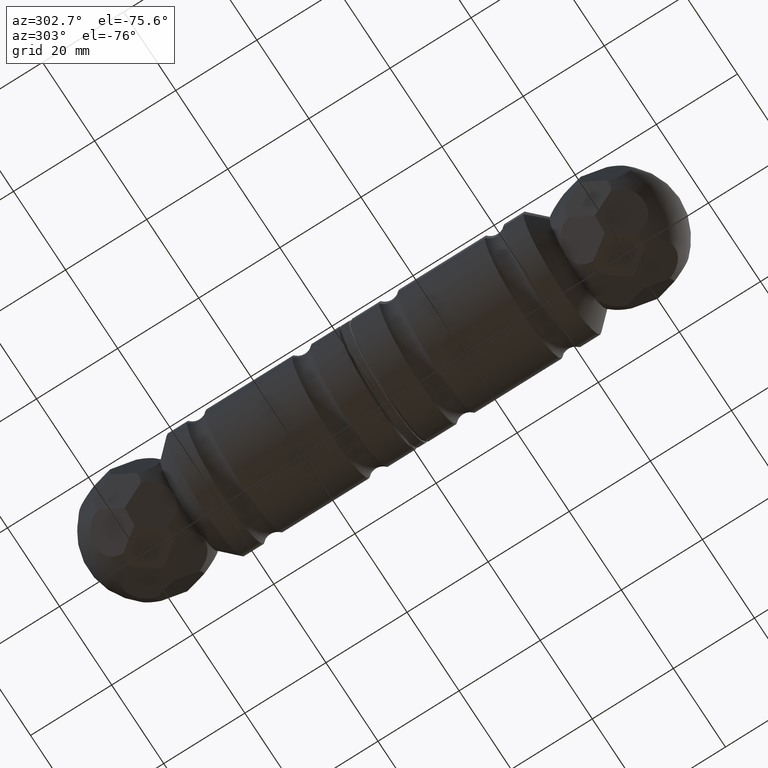
[diagram: clean part render]
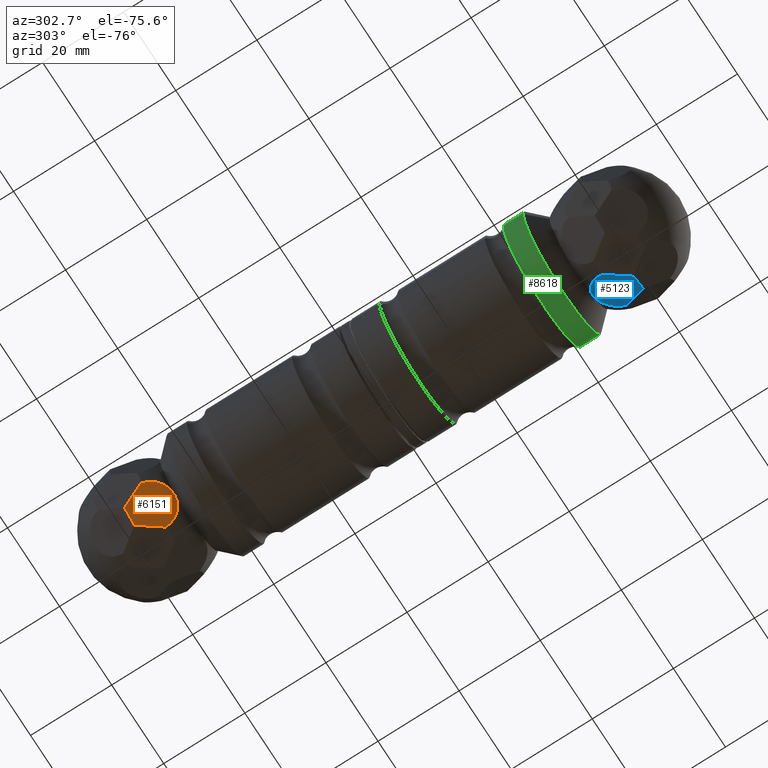
[diagram: same view with three faces highlighted in distinct colors, each labeled with its STEP entity id]
A machine part, auxiliary view with three faces highlighted in distinct colors.
Their STEP definitions:

[orange] entity #6151 — the highlighted planar face has unit normal (-0.4698, -0.342, -0.8138).
#338 = EDGE_CURVE ( 'NONE', #1798, #7979, #10014, .T. ) ;
#771 = ORIENTED_EDGE ( 'NONE', *, *, #8248, .F. ) ;
#797 = VERTEX_POINT ( 'NONE', #985 ) ;
#985 = CARTESIAN_POINT ( 'NONE',  ( -1.713864669725548184, 51.75975497768801858, -13.95000000000003482 ) ) ;
#1187 = CARTESIAN_POINT ( 'NONE',  ( -10.27424977129235550, 54.36950760911572900, -10.10447738646861815 ) ) ;
#1239 = ORIENTED_EDGE ( 'NONE', *, *, #2906, .F. ) ;
#1299 = DIRECTION ( 'NONE',  ( -0.1710100716628319417, 0.9396926207859082059, -0.2961981327260259644 ) ) ;
#1497 = DIRECTION ( 'NONE',  ( -0.4698463103929466089, -0.3420201433256693790, -0.8137976813493779105 ) ) ;
#1510 = LINE ( 'NONE', #5236, #8068 ) ;
#1770 = EDGE_CURVE ( 'NONE', #4732, #797, #1510, .T. ) ;
#1798 = VERTEX_POINT ( 'NONE', #13544 ) ;
#2233 = CARTESIAN_POINT ( 'NONE',  ( -7.422639963019364018, 56.99999999999999289, -12.85638954224098818 ) ) ;
#2347 = DIRECTION ( 'NONE',  ( 0.2942623679600631648, 0.8084792113654895029, -0.5096773720623396509 ) ) ;
#2680 = CIRCLE ( 'NONE', #10488, 5.513392784846723238 ) ;
#2694 = CARTESIAN_POINT ( 'NONE',  ( -6.554356029981602383, 52.22881900060691152, -11.35247765482381865 ) ) ;
#2906 = EDGE_CURVE ( 'NONE', #1798, #797, #9971, .T. ) ;
#2921 = LINE ( 'NONE', #2233, #10247 ) ;
#3320 = DIRECTION ( 'NONE',  ( -0.8660254037844432595, -2.953686663242670623E-17, 0.4999999999999919509 ) ) ;
#3611 = CIRCLE ( 'NONE', #8136, 5.513392784846724126 ) ;
#3756 = DIRECTION ( 'NONE',  ( -0.8660254037843626573, -4.417519040118864010E-13, 0.5000000000001315614 ) ) ;
#4459 = DIRECTION ( 'NONE',  ( -0.8660254037844433705, 1.258552433082297347E-15, 0.4999999999999917843 ) ) ;
#4511 = DIRECTION ( 'NONE',  ( 0.4698463103929464979, 0.3420201433256693790, 0.8137976813493777994 ) ) ;
#4567 = VERTEX_POINT ( 'NONE', #4709 ) ;
#4709 = CARTESIAN_POINT ( 'NONE',  ( -5.561659592849339973, 56.99999999999999289, -13.93082705991524328 ) ) ;
#4732 = VERTEX_POINT ( 'NONE', #13441 ) ;
#4746 = DIRECTION ( 'NONE',  ( 0.4698463103929464979, 0.3420201433256693790, 0.8137976813493777994 ) ) ;
#4841 = DIRECTION ( 'NONE',  ( -0.8660254037843092556, -7.362531733531441194E-13, 0.5000000000002241540 ) ) ;
#4917 = DIRECTION ( 'NONE',  ( 0.4698463103929464979, 0.3420201433256693790, 0.8137976813493777994 ) ) ;
#5236 = CARTESIAN_POINT ( 'NONE',  ( -3.613609223000679549, 54.36950760911571479, -13.95000000000006857 ) ) ;
#5318 = EDGE_CURVE ( 'NONE', #4732, #4567, #3611, .T. ) ;
#5451 = CARTESIAN_POINT ( 'NONE',  ( -6.554356029981602383, 52.22881900060691152, -11.35247765482381865 ) ) ;
#5661 = CARTESIAN_POINT ( 'NONE',  ( -6.554356029981603271, 52.22881900060693994, -11.35247765482382043 ) ) ;
#5872 = CARTESIAN_POINT ( 'NONE',  ( -6.554356029981602383, 52.22881900060691152, -11.35247765482381865 ) ) ;
#5893 = ORIENTED_EDGE ( 'NONE', *, *, #5318, .F. ) ;
#5929 = ORIENTED_EDGE ( 'NONE', *, *, #338, .T. ) ;
#6151 = ADVANCED_FACE ( 'NONE', ( #8102 ), #11851, .T. ) ;
#7310 = CARTESIAN_POINT ( 'NONE',  ( -9.283620333189391616, 56.99999999999999289, -11.78195202456674195 ) ) ;
#7335 = CARTESIAN_POINT ( 'NONE',  ( -9.324377494654711995, 56.97926024054350336, -11.74970443030608003 ) ) ;
#7342 = DIRECTION ( 'NONE',  ( 0.5885247359201012385, -0.8084792113654964973, 1.038813655595948112E-14 ) ) ;
#7957 = ORIENTED_EDGE ( 'NONE', *, *, #11993, .F. ) ;
#7979 = VERTEX_POINT ( 'NONE', #7335 ) ;
#8068 = VECTOR ( 'NONE', #7342, 1000.000000000000114 ) ;
#8102 = FACE_OUTER_BOUND ( 'NONE', #11109, .T. ) ;
#8136 = AXIS2_PLACEMENT_3D ( 'NONE', #5872, #4917, #3756 ) ;
#8248 = EDGE_CURVE ( 'NONE', #9316, #7979, #2680, .T. ) ;
#9316 = VERTEX_POINT ( 'NONE', #7310 ) ;
#9971 = CIRCLE ( 'NONE', #11312, 5.513392784846725014 ) ;
#10014 = LINE ( 'NONE', #1187, #12454 ) ;
#10247 = VECTOR ( 'NONE', #3320, 1000.000000000000114 ) ;
#10488 = AXIS2_PLACEMENT_3D ( 'NONE', #2694, #4746, #4841 ) ;
#11109 = EDGE_LOOP ( 'NONE', ( #7957, #5893, #13245, #1239, #5929, #771 ) ) ;
#11312 = AXIS2_PLACEMENT_3D ( 'NONE', #5451, #4511, #4459 ) ;
#11851 = PLANE ( 'NONE',  #12934 ) ;
#11993 = EDGE_CURVE ( 'NONE', #4567, #9316, #2921, .T. ) ;
#12454 = VECTOR ( 'NONE', #2347, 1000.000000000000000 ) ;
#12934 = AXIS2_PLACEMENT_3D ( 'NONE', #5661, #1497, #1299 ) ;
#13245 = ORIENTED_EDGE ( 'NONE', *, *, #1770, .T. ) ;
#13441 = CARTESIAN_POINT ( 'NONE',  ( -5.513353776275810247, 56.97926024054342520, -13.95000000000010054 ) ) ;
#13544 = CARTESIAN_POINT ( 'NONE',  ( -11.22412204792999368, 51.75975497768796174, -8.459250342631168706 ) ) ;

[blue] entity #5123 — the highlighted planar face has unit normal (0.4698, 0.342, -0.8138).
#127 = DIRECTION ( 'NONE',  ( 0.2942623679600631648, 0.8084792113654895029, -0.5096773720623396509 ) ) ;
#604 = DIRECTION ( 'NONE',  ( -0.8660254037844433705, 1.258552433082297347E-15, 0.4999999999999917843 ) ) ;
#635 = CARTESIAN_POINT ( 'NONE',  ( -6.554356029981603271, 52.22881900060693994, -11.35247765482382043 ) ) ;
#1110 = ORIENTED_EDGE ( 'NONE', *, *, #1980, .F. ) ;
#1171 = CARTESIAN_POINT ( 'NONE',  ( -10.27424977129235550, 54.36950760911572900, -10.10447738646861815 ) ) ;
#1195 = AXIS2_PLACEMENT_3D ( 'NONE', #12543, #11607, #10484 ) ;
#1577 = DIRECTION ( 'NONE',  ( 0.4698463103929464979, 0.3420201433256693790, 0.8137976813493777994 ) ) ;
#1706 = DIRECTION ( 'NONE',  ( -0.4698463103929466089, -0.3420201433256693790, -0.8137976813493779105 ) ) ;
#1980 = EDGE_CURVE ( 'NONE', #2271, #2934, #10654, .T. ) ;
#2210 = DIRECTION ( 'NONE',  ( -0.8660254037844432595, -1.454337538917726453E-16, 0.4999999999999918954 ) ) ;
#2271 = VERTEX_POINT ( 'NONE', #6088 ) ;
#2427 = CIRCLE ( 'NONE', #1195, 5.513392784846724126 ) ;
#2743 = CARTESIAN_POINT ( 'NONE',  ( -6.554356029981602383, 52.22881900060691152, -11.35247765482381865 ) ) ;
#2805 = AXIS2_PLACEMENT_3D ( 'NONE', #635, #1706, #10044 ) ;
#2934 = VERTEX_POINT ( 'NONE', #7433 ) ;
#3122 = FACE_OUTER_BOUND ( 'NONE', #10465, .T. ) ;
#3195 = EDGE_CURVE ( 'NONE', #2934, #8941, #7387, .T. ) ;
#3755 = AXIS2_PLACEMENT_3D ( 'NONE', #6459, #9604, #8479 ) ;
#3828 = VECTOR ( 'NONE', #127, 1000.000000000000000 ) ;
#3950 = VERTEX_POINT ( 'NONE', #8504 ) ;
#4915 = VERTEX_POINT ( 'NONE', #7617 ) ;
#5097 = VECTOR ( 'NONE', #2210, 1000.000000000000114 ) ;
#5123 = ADVANCED_FACE ( 'NONE', ( #3122 ), #5873, .T. ) ;
#5164 = AXIS2_PLACEMENT_3D ( 'NONE', #2743, #1577, #604 ) ;
#5873 = PLANE ( 'NONE',  #2805 ) ;
#6088 = CARTESIAN_POINT ( 'NONE',  ( -5.513353776275810247, 56.97926024054342520, -13.95000000000010054 ) ) ;
#6168 = CARTESIAN_POINT ( 'NONE',  ( -3.613609223000679549, 54.36950760911571479, -13.95000000000006857 ) ) ;
#6459 = CARTESIAN_POINT ( 'NONE',  ( -6.554356029981602383, 52.22881900060691152, -11.35247765482381865 ) ) ;
#6517 = VERTEX_POINT ( 'NONE', #10784 ) ;
#6857 = EDGE_CURVE ( 'NONE', #6517, #4915, #13286, .T. ) ;
#7173 = DIRECTION ( 'NONE',  ( 0.5885247359201012385, -0.8084792113654964973, 1.038813655595948112E-14 ) ) ;
#7387 = LINE ( 'NONE', #12604, #5097 ) ;
#7403 = ORIENTED_EDGE ( 'NONE', *, *, #7588, .F. ) ;
#7433 = CARTESIAN_POINT ( 'NONE',  ( -5.561659592849361289, 57.00000000000000711, -13.93082705991523440 ) ) ;
#7453 = CARTESIAN_POINT ( 'NONE',  ( -9.283620333189409379, 57.00000000000002132, -11.78195202456672952 ) ) ;
#7588 = EDGE_CURVE ( 'NONE', #6517, #3950, #8230, .T. ) ;
#7617 = CARTESIAN_POINT ( 'NONE',  ( -9.324377494654711995, 56.97926024054350336, -11.74970443030608003 ) ) ;
#8167 = ORIENTED_EDGE ( 'NONE', *, *, #11678, .F. ) ;
#8230 = CIRCLE ( 'NONE', #5164, 5.513392784846725014 ) ;
#8479 = DIRECTION ( 'NONE',  ( -0.8660254037844110631, -1.774558930646039309E-13, 0.5000000000000478506 ) ) ;
#8504 = CARTESIAN_POINT ( 'NONE',  ( -1.713864669725547296, 51.75975497768801858, -13.95000000000003482 ) ) ;
#8720 = ORIENTED_EDGE ( 'NONE', *, *, #12461, .T. ) ;
#8941 = VERTEX_POINT ( 'NONE', #7453 ) ;
#9110 = LINE ( 'NONE', #6168, #11522 ) ;
#9604 = DIRECTION ( 'NONE',  ( 0.4698463103929464979, 0.3420201433256693790, 0.8137976813493777994 ) ) ;
#9657 = ORIENTED_EDGE ( 'NONE', *, *, #3195, .F. ) ;
#10044 = DIRECTION ( 'NONE',  ( -0.1710100716628319417, 0.9396926207859082059, -0.2961981327260259644 ) ) ;
#10465 = EDGE_LOOP ( 'NONE', ( #9657, #1110, #8720, #7403, #12706, #8167 ) ) ;
#10484 = DIRECTION ( 'NONE',  ( -0.8660254037843859720, -3.158966607036566749E-13, 0.5000000000000912603 ) ) ;
#10654 = CIRCLE ( 'NONE', #3755, 5.513392784846724126 ) ;
#10784 = CARTESIAN_POINT ( 'NONE',  ( -11.22412204792999368, 51.75975497768796174, -8.459250342631168706 ) ) ;
#11522 = VECTOR ( 'NONE', #7173, 1000.000000000000114 ) ;
#11607 = DIRECTION ( 'NONE',  ( 0.4698463103929464979, 0.3420201433256693790, 0.8137976813493777994 ) ) ;
#11678 = EDGE_CURVE ( 'NONE', #8941, #4915, #2427, .T. ) ;
#12461 = EDGE_CURVE ( 'NONE', #2271, #3950, #9110, .T. ) ;
#12543 = CARTESIAN_POINT ( 'NONE',  ( -6.554356029981602383, 52.22881900060691152, -11.35247765482381865 ) ) ;
#12604 = CARTESIAN_POINT ( 'NONE',  ( -7.422639963019367570, 57.00000000000002132, -12.85638954224099528 ) ) ;
#12706 = ORIENTED_EDGE ( 'NONE', *, *, #6857, .T. ) ;
#13286 = LINE ( 'NONE', #1171, #3828 ) ;

[green] entity #8618 — the highlighted cylindrical surface (bore or boss wall) has radius 15 mm, axis along (-0, 1, -0).
#912 = CARTESIAN_POINT ( 'NONE',  ( -2.386008297202343457E-16, 38.00000000000000711, 0.000000000000000000 ) ) ;
#1385 = CARTESIAN_POINT ( 'NONE',  ( 14.99999999999999645, 38.00000000000000711, 0.000000000000000000 ) ) ;
#1749 = CARTESIAN_POINT ( 'NONE',  ( 0.000000000000000000, 0.000000000000000000, 0.000000000000000000 ) ) ;
#2274 = EDGE_CURVE ( 'NONE', #3365, #3365, #12435, .T. ) ;
#2609 = ORIENTED_EDGE ( 'NONE', *, *, #6559, .T. ) ;
#2823 = DIRECTION ( 'NONE',  ( 6.278969203164131143E-18, -1.000000000000000000, 0.000000000000000000 ) ) ;
#3365 = VERTEX_POINT ( 'NONE', #1385 ) ;
#3697 = VERTEX_POINT ( 'NONE', #8708 ) ;
#3720 = CARTESIAN_POINT ( 'NONE',  ( -2.699956757360545453E-16, 43.00000000000000000, 6.842277657836020854E-46 ) ) ;
#4673 = EDGE_LOOP ( 'NONE', ( #11096 ) ) ;
#4880 = DIRECTION ( 'NONE',  ( 1.000000000000000000, 0.000000000000000000, 0.000000000000000000 ) ) ;
#5000 = DIRECTION ( 'NONE',  ( 1.000000000000000000, 6.278969203164007883E-18, 0.000000000000000000 ) ) ;
#5710 = EDGE_LOOP ( 'NONE', ( #2609 ) ) ;
#6116 = CIRCLE ( 'NONE', #10568, 15.00000000000000000 ) ;
#6242 = FACE_OUTER_BOUND ( 'NONE', #4673, .T. ) ;
#6474 = AXIS2_PLACEMENT_3D ( 'NONE', #1749, #9150, #5000 ) ;
#6559 = EDGE_CURVE ( 'NONE', #3697, #3697, #6116, .T. ) ;
#8115 = DIRECTION ( 'NONE',  ( 1.000000000000000000, 0.000000000000000000, 0.000000000000000000 ) ) ;
#8618 = ADVANCED_FACE ( 'NONE', ( #8881, #6242 ), #9520, .T. ) ;
#8708 = CARTESIAN_POINT ( 'NONE',  ( 15.00000000000000000, 43.00000000000000000, 6.842277657836020854E-46 ) ) ;
#8881 = FACE_OUTER_BOUND ( 'NONE', #5710, .T. ) ;
#9150 = DIRECTION ( 'NONE',  ( 6.278969203164131143E-18, -1.000000000000000000, 0.000000000000000000 ) ) ;
#9520 = CYLINDRICAL_SURFACE ( 'NONE', #6474, 14.99999999999999822 ) ;
#10568 = AXIS2_PLACEMENT_3D ( 'NONE', #3720, #2823, #4880 ) ;
#11096 = ORIENTED_EDGE ( 'NONE', *, *, #2274, .F. ) ;
#11309 = DIRECTION ( 'NONE',  ( 6.278969203164131143E-18, -1.000000000000000000, 0.000000000000000000 ) ) ;
#12397 = AXIS2_PLACEMENT_3D ( 'NONE', #912, #11309, #8115 ) ;
#12435 = CIRCLE ( 'NONE', #12397, 14.99999999999999645 ) ;